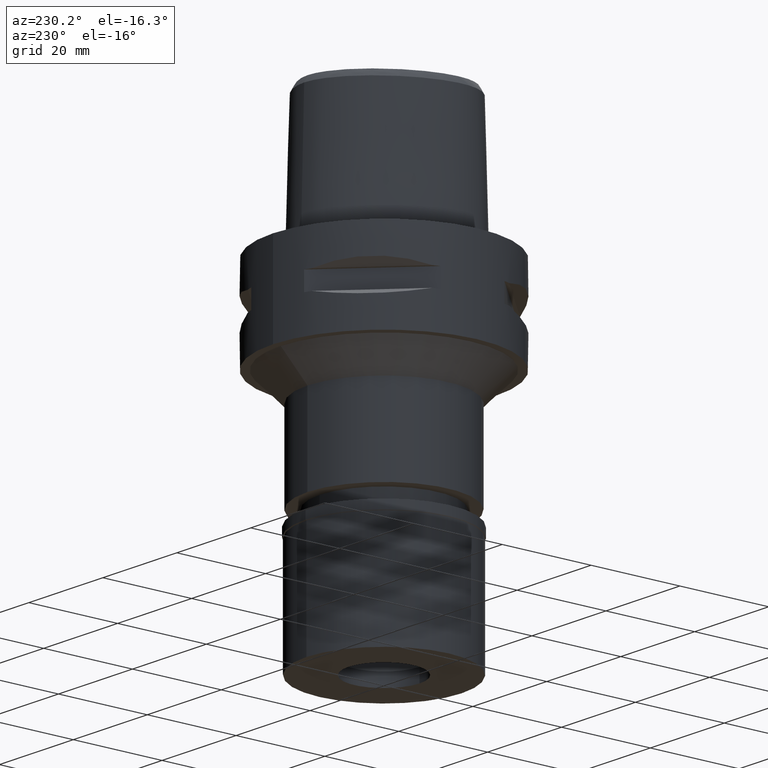
[diagram: clean part render]
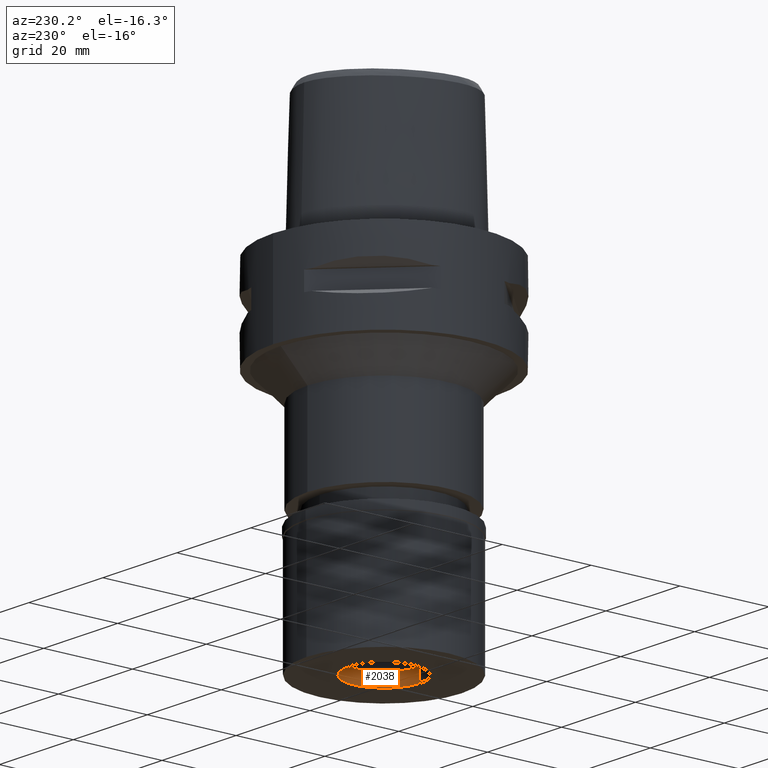
[diagram: same view with one face highlighted and labeled with its STEP entity id]
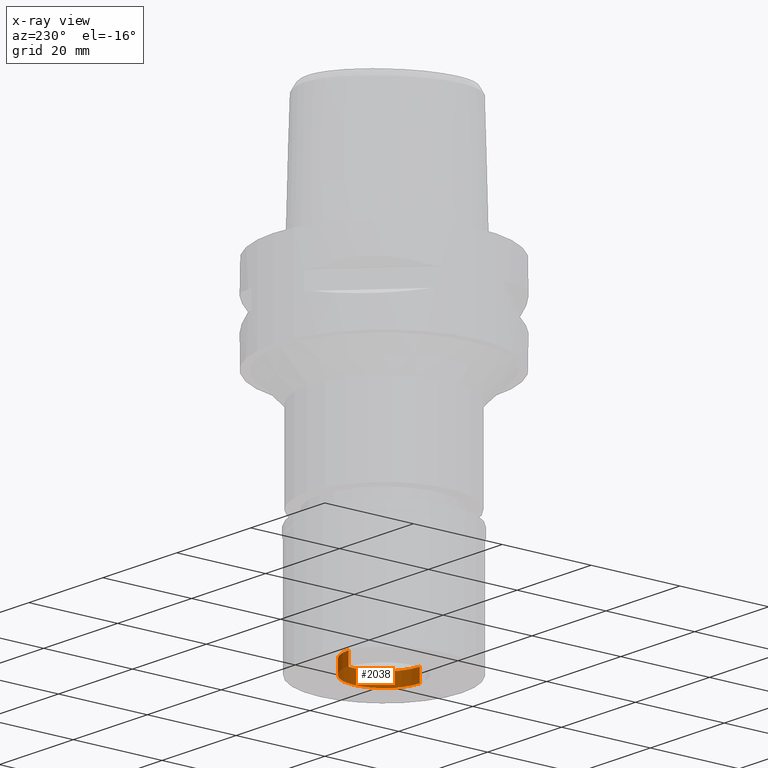
[diagram: x-ray of the same camera — body ghosted, the highlighted face saturated]
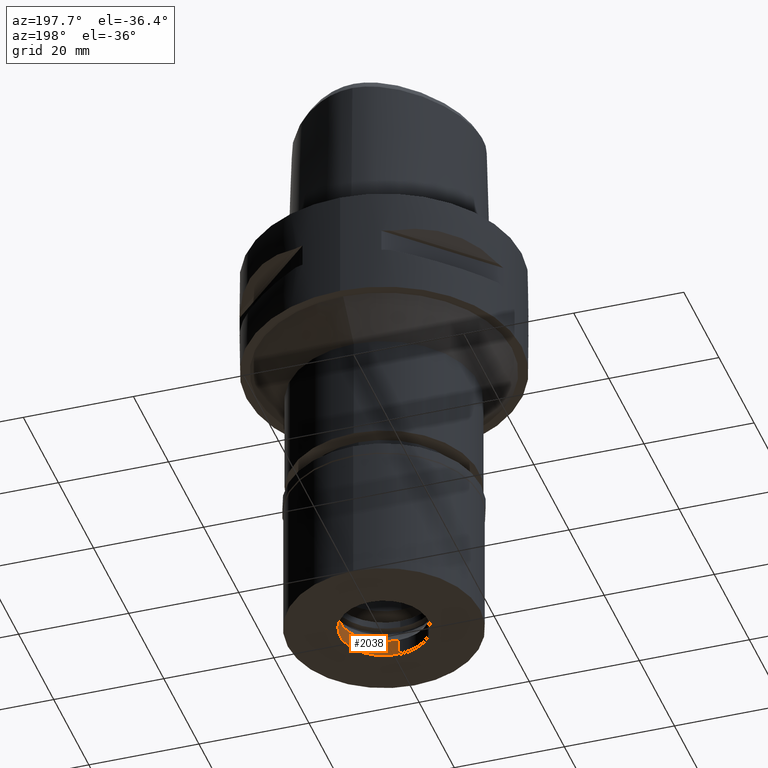
[diagram: same view with one face highlighted and labeled with its STEP entity id]
A machine part, auxiliary view. The second image highlights one B-rep face of the part: STEP entity #2038.
The next image is the same camera in x-ray: the body ghosted, the highlighted face saturated — about 0% of this face is hidden behind the body in this view.
A second angle (auxiliary view) of the same face is appended — the face is thin or edge-on in the first view.
In plain terms, the highlighted cylindrical surface (partial cylindrical patch) has radius 8 mm, axis along (0, 0, -1).
Its self-contained STEP definition (entity closure, byte-faithful):
#320 = EDGE_CURVE ( 'NONE', #2285, #1426, #3685, .T. ) ;
#469 = CARTESIAN_POINT ( 'NONE',  ( 0.0000000000000000000, -8.000000000000000000, -23.69999999999999929 ) ) ;
#623 = EDGE_LOOP ( 'NONE', ( #2142, #3042, #2515, #2199 ) ) ;
#814 = VECTOR ( 'NONE', #1039, 1000.000000000000000 ) ;
#817 = VERTEX_POINT ( 'NONE', #469 ) ;
#828 = EDGE_CURVE ( 'NONE', #817, #1426, #4313, .T. ) ;
#952 = DIRECTION ( 'NONE',  ( 0.0000000000000000000, 0.0000000000000000000, 1.000000000000000000 ) ) ;
#1002 = CARTESIAN_POINT ( 'NONE',  ( 0.0000000000000000000, 8.000000000000000000, -26.70000000000000284 ) ) ;
#1014 = LINE ( 'NONE', #3668, #814 ) ;
#1039 = DIRECTION ( 'NONE',  ( 0.0000000000000000000, 0.0000000000000000000, 1.000000000000000000 ) ) ;
#1072 = VERTEX_POINT ( 'NONE', #1785 ) ;
#1115 = EDGE_CURVE ( 'NONE', #1072, #817, #1014, .T. ) ;
#1253 = CYLINDRICAL_SURFACE ( 'NONE', #1383, 8.000000000000000000 ) ;
#1268 = CARTESIAN_POINT ( 'NONE',  ( 0.0000000000000000000, 0.0000000000000000000, -23.69999999999999929 ) ) ;
#1286 = VECTOR ( 'NONE', #952, 1000.000000000000000 ) ;
#1383 = AXIS2_PLACEMENT_3D ( 'NONE', #3593, #3214, #1751 ) ;
#1415 = EDGE_CURVE ( 'NONE', #2285, #1072, #3912, .T. ) ;
#1426 = VERTEX_POINT ( 'NONE', #1696 ) ;
#1696 = CARTESIAN_POINT ( 'NONE',  ( 0.0000000000000000000, 8.000000000000000000, -23.69999999999999929 ) ) ;
#1751 = DIRECTION ( 'NONE',  ( 0.0000000000000000000, -1.000000000000000000, 0.0000000000000000000 ) ) ;
#1785 = CARTESIAN_POINT ( 'NONE',  ( 0.0000000000000000000, -8.000000000000000000, -26.70000000000000284 ) ) ;
#2038 = ADVANCED_FACE ( 'NONE', ( #2484 ), #1253, .F. ) ;
#2081 = AXIS2_PLACEMENT_3D ( 'NONE', #4710, #4666, #2814 ) ;
#2142 = ORIENTED_EDGE ( 'NONE', *, *, #1415, .T. ) ;
#2199 = ORIENTED_EDGE ( 'NONE', *, *, #320, .F. ) ;
#2285 = VERTEX_POINT ( 'NONE', #1002 ) ;
#2484 = FACE_OUTER_BOUND ( 'NONE', #623, .T. ) ;
#2515 = ORIENTED_EDGE ( 'NONE', *, *, #828, .T. ) ;
#2814 = DIRECTION ( 'NONE',  ( 0.0000000000000000000, 1.000000000000000000, 0.0000000000000000000 ) ) ;
#2966 = AXIS2_PLACEMENT_3D ( 'NONE', #1268, #4181, #4747 ) ;
#3042 = ORIENTED_EDGE ( 'NONE', *, *, #1115, .T. ) ;
#3214 = DIRECTION ( 'NONE',  ( 0.0000000000000000000, 0.0000000000000000000, -1.000000000000000000 ) ) ;
#3593 = CARTESIAN_POINT ( 'NONE',  ( 0.0000000000000000000, 0.0000000000000000000, 0.0000000000000000000 ) ) ;
#3668 = CARTESIAN_POINT ( 'NONE',  ( 0.0000000000000000000, -8.000000000000000000, -26.70000000000000284 ) ) ;
#3685 = LINE ( 'NONE', #4032, #1286 ) ;
#3912 = CIRCLE ( 'NONE', #2081, 8.000000000000000000 ) ;
#4032 = CARTESIAN_POINT ( 'NONE',  ( 0.0000000000000000000, 8.000000000000000000, -26.70000000000000284 ) ) ;
#4181 = DIRECTION ( 'NONE',  ( 0.0000000000000000000, 0.0000000000000000000, 1.000000000000000000 ) ) ;
#4313 = CIRCLE ( 'NONE', #2966, 8.000000000000000000 ) ;
#4666 = DIRECTION ( 'NONE',  ( 0.0000000000000000000, 0.0000000000000000000, -1.000000000000000000 ) ) ;
#4710 = CARTESIAN_POINT ( 'NONE',  ( 0.0000000000000000000, 0.0000000000000000000, -26.70000000000000284 ) ) ;
#4747 = DIRECTION ( 'NONE',  ( 0.0000000000000000000, -1.000000000000000000, 0.0000000000000000000 ) ) ;